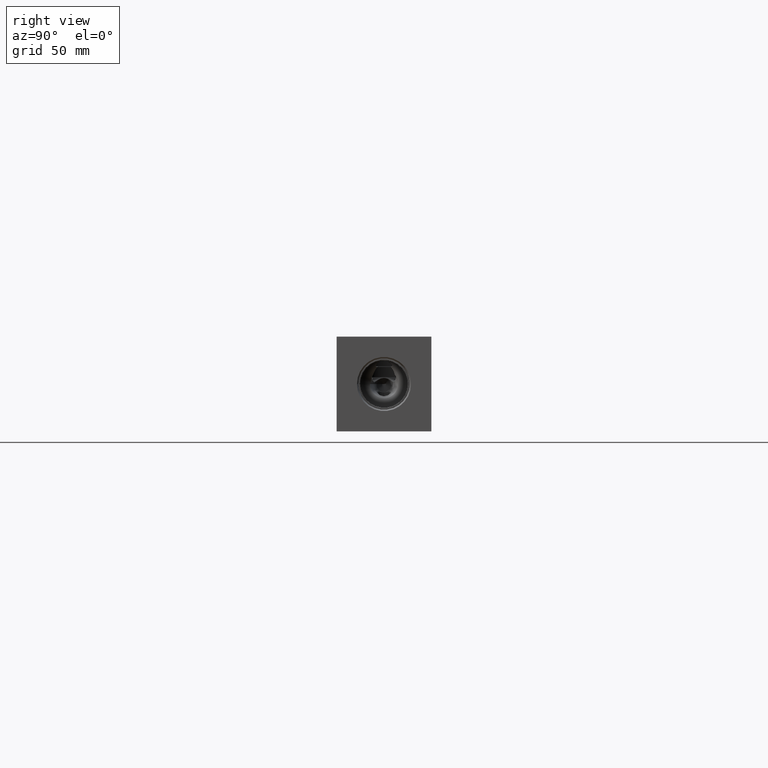
[diagram: clean part render]
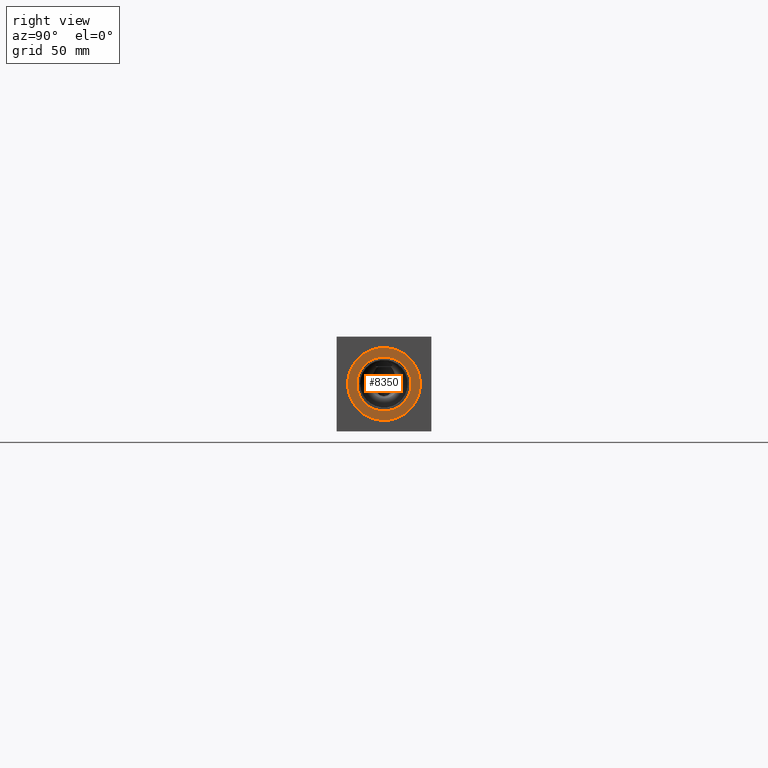
[diagram: same view with one face highlighted and labeled with its STEP entity id]
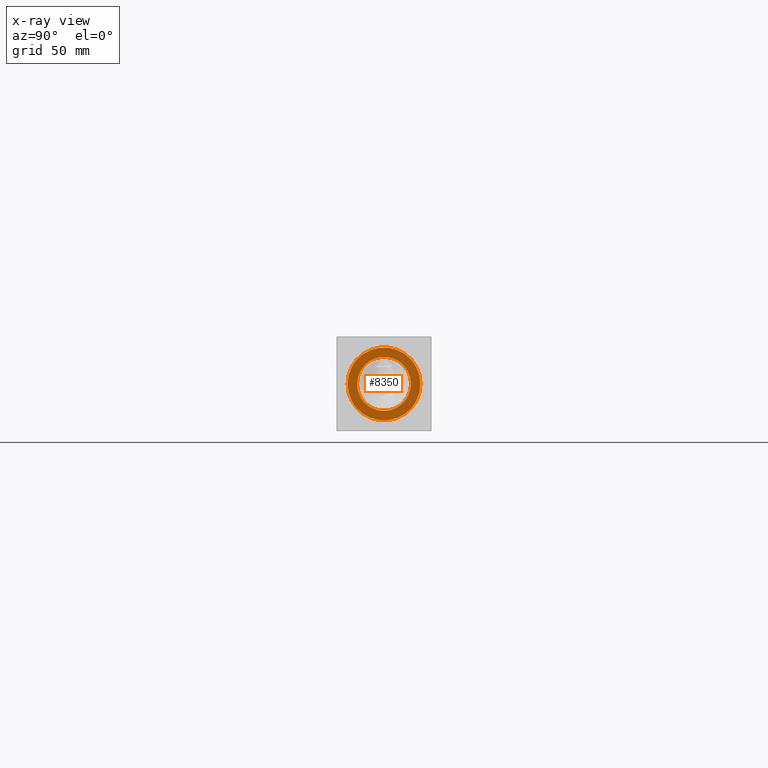
[diagram: x-ray of the same camera — body ghosted, the highlighted face saturated]
A machine part, right view. The second image highlights one B-rep face of the part: STEP entity #8350.
The next image is the same camera in x-ray: the body ghosted, the highlighted face saturated — about 0% of this face is hidden behind the body in this view.
In plain terms, the highlighted planar face has unit normal (1, 0, 0).
Its self-contained STEP definition (entity closure, byte-faithful):
#284=CIRCLE('',#8852,29.2862);
#285=CIRCLE('',#8853,29.2862);
#286=CIRCLE('',#8854,21.7551);
#356=FACE_BOUND('',#1627,.T.);
#1144=FACE_OUTER_BOUND('',#1626,.T.);
#1626=EDGE_LOOP('',(#7304,#7305));
#1627=EDGE_LOOP('',(#7306));
#3873=VERTEX_POINT('',#14639);
#3874=VERTEX_POINT('',#14640);
#3875=VERTEX_POINT('',#14643);
#5030=EDGE_CURVE('',#3873,#3874,#284,.T.);
#5031=EDGE_CURVE('',#3874,#3873,#285,.T.);
#5032=EDGE_CURVE('',#3875,#3875,#286,.T.);
#7304=ORIENTED_EDGE('',*,*,#5030,.T.);
#7305=ORIENTED_EDGE('',*,*,#5031,.T.);
#7306=ORIENTED_EDGE('',*,*,#5032,.F.);
#7625=PLANE('',#8851);
#8350=ADVANCED_FACE('',(#1144,#356),#7625,.T.);
#8851=AXIS2_PLACEMENT_3D('',#14638,#10543,#10544);
#8852=AXIS2_PLACEMENT_3D('',#14641,#10545,#10546);
#8853=AXIS2_PLACEMENT_3D('',#14642,#10547,#10548);
#8854=AXIS2_PLACEMENT_3D('',#14644,#10549,#10550);
#10543=DIRECTION('center_axis',(1.,0.,0.));
#10544=DIRECTION('ref_axis',(0.,1.,0.));
#10545=DIRECTION('center_axis',(1.,0.,0.));
#10546=DIRECTION('ref_axis',(0.,1.,0.));
#10547=DIRECTION('center_axis',(1.,0.,0.));
#10548=DIRECTION('ref_axis',(0.,1.,0.));
#10549=DIRECTION('center_axis',(1.,0.,0.));
#10550=DIRECTION('ref_axis',(0.,1.,0.));
#14638=CARTESIAN_POINT('Origin',(577.0626,38.1,38.1));
#14639=CARTESIAN_POINT('',(577.0626,67.3862,38.1));
#14640=CARTESIAN_POINT('',(577.0626,8.8138,38.1));
#14641=CARTESIAN_POINT('Origin',(577.0626,38.1,38.1));
#14642=CARTESIAN_POINT('Origin',(577.0626,38.1,38.1));
#14643=CARTESIAN_POINT('',(577.0626,16.3449,38.1));
#14644=CARTESIAN_POINT('Origin',(577.0626,38.1,38.1));